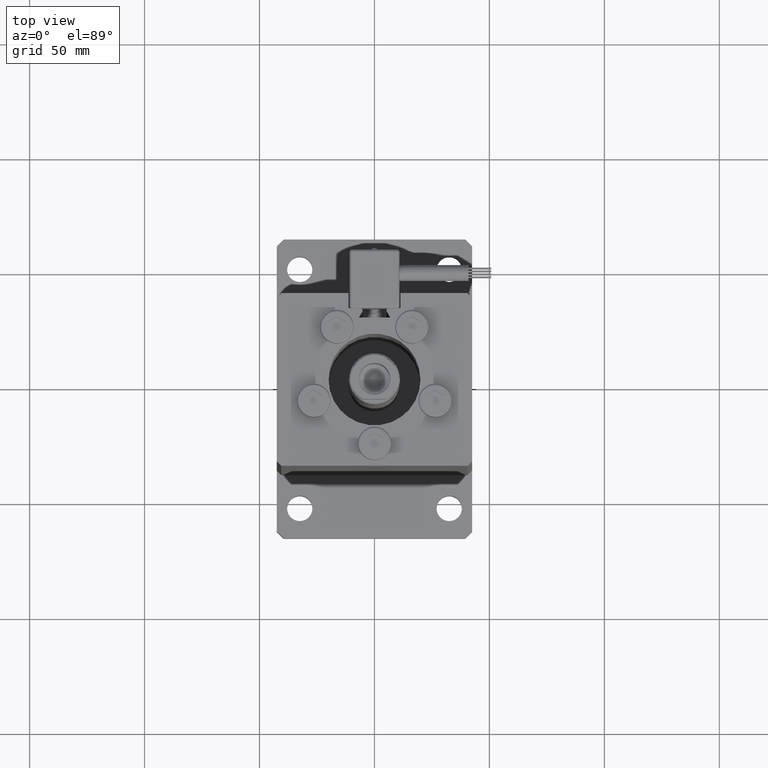
[diagram: clean part render]
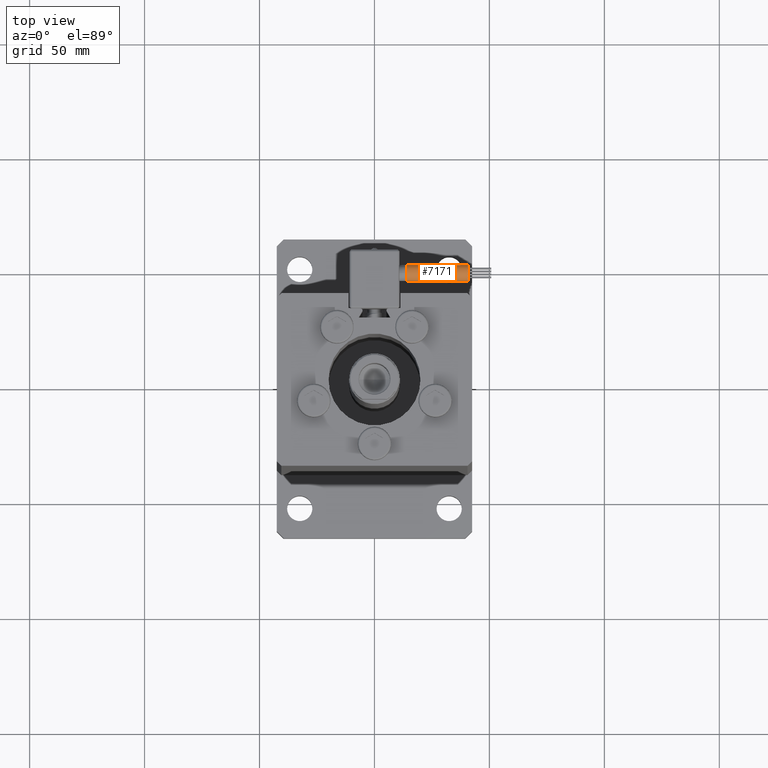
[diagram: same view with one face highlighted and labeled with its STEP entity id]
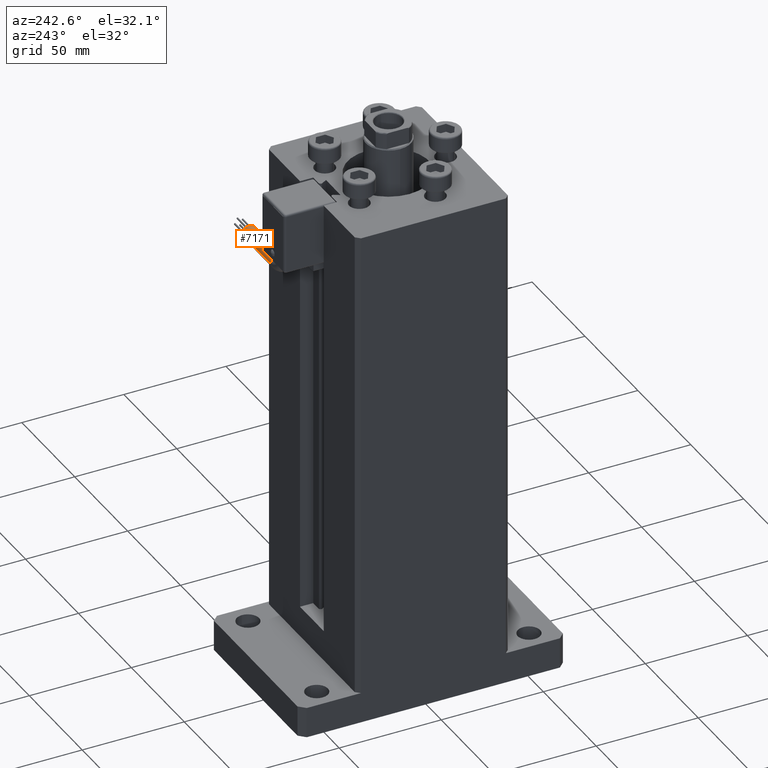
[diagram: same view with one face highlighted and labeled with its STEP entity id]
A machine part, top view. The second image highlights one B-rep face of the part: STEP entity #7171.
A second angle (auxiliary view) of the same face is appended — the face is thin or edge-on in the first view.
In plain terms, the highlighted cylindrical surface (edge-blend (fillet) strip) has radius 3.5 mm, axis along (1, -0, 0).
Its self-contained STEP definition (entity closure, byte-faithful):
#313 = CIRCLE ( 'NONE', #7608, 3.500000000000003109 ) ;
#454 = CARTESIAN_POINT ( 'NONE',  ( 13.80000000000000071, 45.50000000000000711, -65.00000000000000000 ) ) ;
#956 = CARTESIAN_POINT ( 'NONE',  ( 13.79999999999999893, 38.50000000000000000, -65.00000000000000000 ) ) ;
#2279 = DIRECTION ( 'NONE',  ( 1.000000000000000000, 0.000000000000000000, 2.220446049250000002E-16 ) ) ;
#2556 = DIRECTION ( 'NONE',  ( 0.000000000000000000, 0.000000000000000000, -1.000000000000000000 ) ) ;
#3540 = VERTEX_POINT ( 'NONE', #956 ) ;
#3630 = DIRECTION ( 'NONE',  ( 1.000000000000000000, -2.599999999999999847E-16, 2.220446049250000002E-16 ) ) ;
#3781 = CARTESIAN_POINT ( 'NONE',  ( 13.79999999999999893, 45.50000000000000711, -65.00000000000000000 ) ) ;
#7171 = ADVANCED_FACE ( 'NONE', ( #13039 ), #13328, .T. ) ;
#7608 = AXIS2_PLACEMENT_3D ( 'NONE', #41354, #33642, #54700 ) ;
#8334 = CARTESIAN_POINT ( 'NONE',  ( 13.79999999999999893, 42.00000000000000000, -65.00000000000000000 ) ) ;
#9616 = DIRECTION ( 'NONE',  ( 1.000000000000000000, -2.599999999999999847E-16, 2.220446049250000002E-16 ) ) ;
#11298 = CIRCLE ( 'NONE', #28600, 3.500000000000003109 ) ;
#11965 = EDGE_LOOP ( 'NONE', ( #23629, #22171, #51616, #53798, #37119 ) ) ;
#13039 = FACE_OUTER_BOUND ( 'NONE', #11965, .T. ) ;
#13279 = DIRECTION ( 'NONE',  ( 1.000000000000000000, -2.599999999999999847E-16, 2.220446049250000002E-16 ) ) ;
#13328 = CYLINDRICAL_SURFACE ( 'NONE', #35748, 3.500000000000003109 ) ;
#18932 = AXIS2_PLACEMENT_3D ( 'NONE', #8334, #33969, #34811 ) ;
#20045 = VERTEX_POINT ( 'NONE', #27931 ) ;
#20472 = VECTOR ( 'NONE', #3630, 1000.000000000000000 ) ;
#20717 = CARTESIAN_POINT ( 'NONE',  ( 13.79999999999999716, 38.50000000000000000, -65.00000000000000000 ) ) ;
#22171 = ORIENTED_EDGE ( 'NONE', *, *, #46369, .T. ) ;
#22698 = DIRECTION ( 'NONE',  ( -4.956352788505158337E-16, -1.000000000000000000, 0.000000000000000000 ) ) ;
#23627 = CARTESIAN_POINT ( 'NONE',  ( 13.79999999999999893, 42.00000000000000000, -65.00000000000000000 ) ) ;
#23629 = ORIENTED_EDGE ( 'NONE', *, *, #29688, .F. ) ;
#26673 = VECTOR ( 'NONE', #13279, 1000.000000000000000 ) ;
#27931 = CARTESIAN_POINT ( 'NONE',  ( 40.80000000000000426, 45.50000000000000711, -65.00000000000000000 ) ) ;
#28600 = AXIS2_PLACEMENT_3D ( 'NONE', #23627, #2279, #2556 ) ;
#29009 = LINE ( 'NONE', #20717, #20472 ) ;
#29688 = EDGE_CURVE ( 'NONE', #39480, #20045, #52827, .T. ) ;
#33642 = DIRECTION ( 'NONE',  ( 1.000000000000000000, 0.000000000000000000, 2.220446049250000002E-16 ) ) ;
#33969 = DIRECTION ( 'NONE',  ( 1.000000000000000000, 0.000000000000000000, 2.220446049250000002E-16 ) ) ;
#34025 = VERTEX_POINT ( 'NONE', #46349 ) ;
#34677 = CARTESIAN_POINT ( 'NONE',  ( 13.79999999999999893, 41.99999999999999289, -61.50000000000000000 ) ) ;
#34811 = DIRECTION ( 'NONE',  ( 0.000000000000000000, 0.000000000000000000, -1.000000000000000000 ) ) ;
#35748 = AXIS2_PLACEMENT_3D ( 'NONE', #44346, #9616, #22698 ) ;
#36206 = CIRCLE ( 'NONE', #18932, 3.500000000000003109 ) ;
#37119 = ORIENTED_EDGE ( 'NONE', *, *, #52966, .F. ) ;
#38267 = EDGE_CURVE ( 'NONE', #3540, #34025, #29009, .T. ) ;
#39480 = VERTEX_POINT ( 'NONE', #3781 ) ;
#41354 = CARTESIAN_POINT ( 'NONE',  ( 40.80000000000000426, 42.00000000000000000, -65.00000000000000000 ) ) ;
#44346 = CARTESIAN_POINT ( 'NONE',  ( 13.79999999999999893, 42.00000000000000000, -65.00000000000000000 ) ) ;
#46349 = CARTESIAN_POINT ( 'NONE',  ( 40.80000000000000426, 38.50000000000000000, -65.00000000000000000 ) ) ;
#46369 = EDGE_CURVE ( 'NONE', #39480, #46894, #36206, .T. ) ;
#46894 = VERTEX_POINT ( 'NONE', #34677 ) ;
#51616 = ORIENTED_EDGE ( 'NONE', *, *, #54628, .T. ) ;
#52827 = LINE ( 'NONE', #454, #26673 ) ;
#52966 = EDGE_CURVE ( 'NONE', #20045, #34025, #313, .T. ) ;
#53798 = ORIENTED_EDGE ( 'NONE', *, *, #38267, .T. ) ;
#54628 = EDGE_CURVE ( 'NONE', #46894, #3540, #11298, .T. ) ;
#54700 = DIRECTION ( 'NONE',  ( 0.000000000000000000, 0.000000000000000000, -1.000000000000000000 ) ) ;